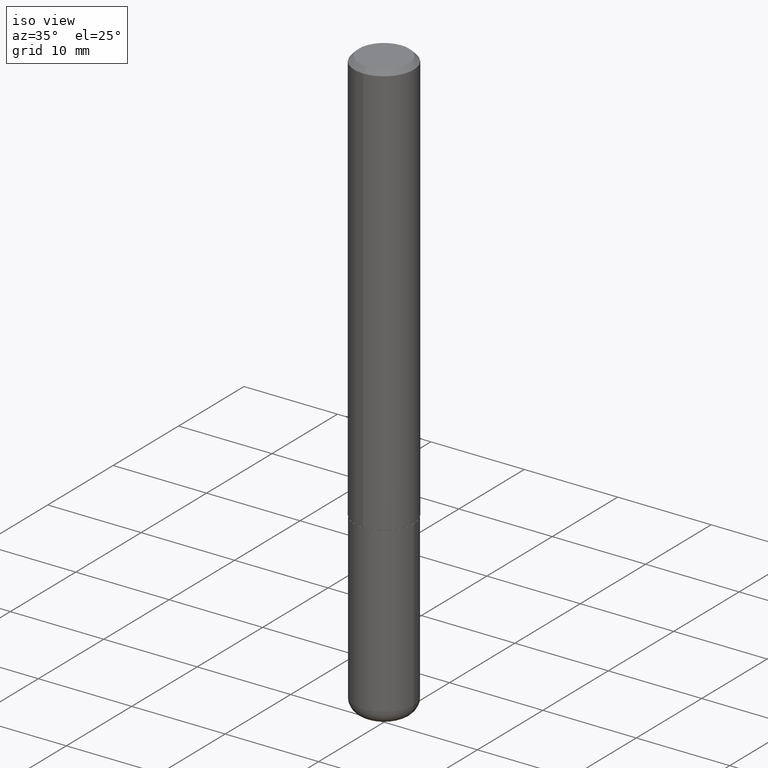
[diagram: clean part render]
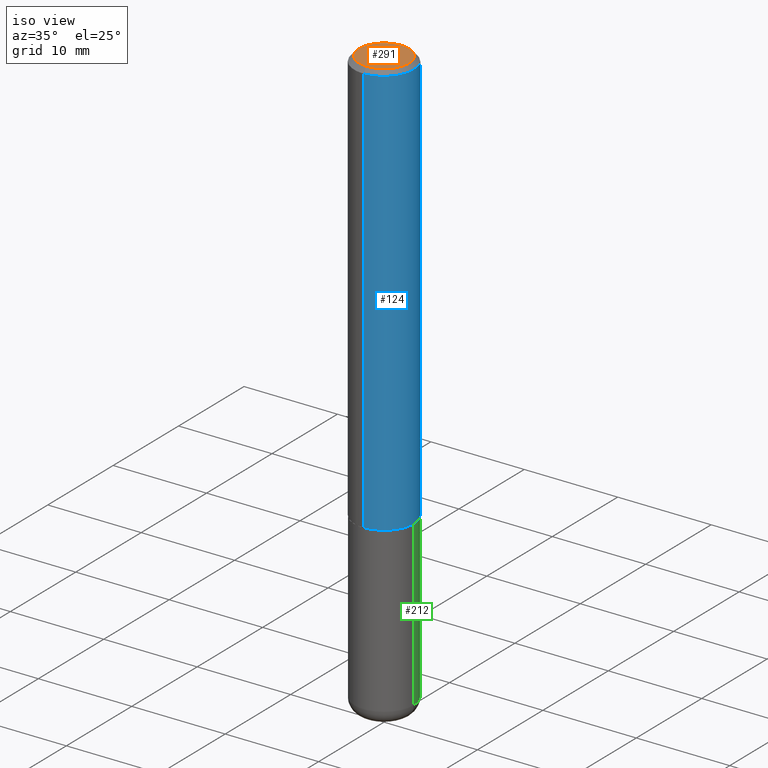
[diagram: same view with three faces highlighted in distinct colors, each labeled with its STEP entity id]
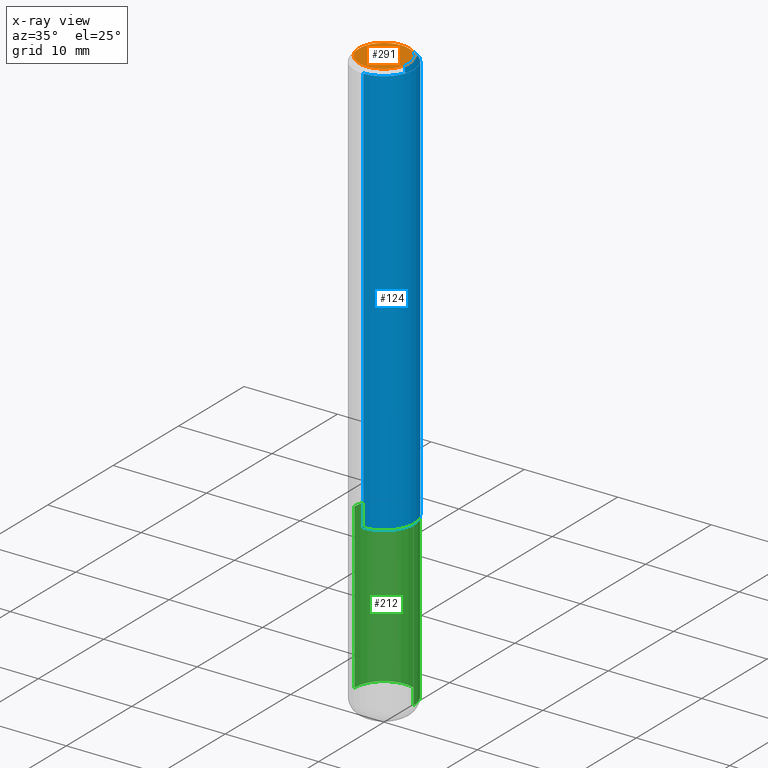
[diagram: x-ray of the same camera — body ghosted, the three highlighted faces saturated]
A machine part, iso view with three faces highlighted in distinct colors.
The next image is the same camera in x-ray (body ghosted, the three faces saturated) — at least one of them is partly hidden behind the body in this view.
Their STEP definitions:

[orange] entity #291 — the highlighted planar face has unit normal (0, -0, -1).
#3 = DIRECTION ( 'NONE',  ( -2.444769625519019670E-29, 3.492482605351917386E-15, 1.000000000000000000 ) ) ;
#6 = EDGE_CURVE ( 'NONE', #348, #399, #46, .T. ) ;
#38 = CARTESIAN_POINT ( 'NONE',  ( 2.501956864421970211E-45, -3.574177598218272952E-31, -1.023391667789888407E-16 ) ) ;
#46 = CIRCLE ( 'NONE', #347, 0.1050000000000001210 ) ;
#75 = CARTESIAN_POINT ( 'NONE',  ( 7.332110811570587146E-16, 0.1050000000000001210, -4.178802569514461450E-16 ) ) ;
#80 = FACE_OUTER_BOUND ( 'NONE', #169, .T. ) ;
#90 = CARTESIAN_POINT ( 'NONE',  ( 2.501956864421970211E-45, -3.574177598218272952E-31, -1.023391667789888407E-16 ) ) ;
#112 = ORIENTED_EDGE ( 'NONE', *, *, #199, .T. ) ;
#134 = DIRECTION ( 'NONE',  ( -6.982962677686265133E-15, -1.000000000000000000, 3.492482605351917386E-15 ) ) ;
#166 = DIRECTION ( 'NONE',  ( 2.444769625519019109E-29, -3.492482605351917386E-15, -1.000000000000000000 ) ) ;
#169 = EDGE_LOOP ( 'NONE', ( #112, #370 ) ) ;
#199 = EDGE_CURVE ( 'NONE', #399, #348, #215, .T. ) ;
#201 = AXIS2_PLACEMENT_3D ( 'NONE', #38, #3, #134 ) ;
#208 = DIRECTION ( 'NONE',  ( -6.982962677686265133E-15, -1.000000000000000000, 3.492482605351917386E-15 ) ) ;
#215 = CIRCLE ( 'NONE', #201, 0.1050000000000001210 ) ;
#223 = DIRECTION ( 'NONE',  ( 6.982962677686265922E-15, 1.000000000000000000, -3.492482605351917386E-15 ) ) ;
#270 = CARTESIAN_POINT ( 'NONE',  ( -7.889572697437263111E-16, -0.1050000000000001210, 2.643715067829629270E-16 ) ) ;
#290 = AXIS2_PLACEMENT_3D ( 'NONE', #75, #166, #223 ) ;
#291 = ADVANCED_FACE ( 'NONE', ( #80 ), #401, .F. ) ;
#347 = AXIS2_PLACEMENT_3D ( 'NONE', #90, #402, #208 ) ;
#348 = VERTEX_POINT ( 'NONE', #270 ) ;
#370 = ORIENTED_EDGE ( 'NONE', *, *, #6, .T. ) ;
#399 = VERTEX_POINT ( 'NONE', #418 ) ;
#401 = PLANE ( 'NONE',  #290 ) ;
#402 = DIRECTION ( 'NONE',  ( -2.444769625519019670E-29, 3.492482605351917386E-15, 1.000000000000000000 ) ) ;
#418 = CARTESIAN_POINT ( 'NONE',  ( 8.030407079339212239E-16, 0.1050000000000001210, -4.690498403409406824E-16 ) ) ;

[blue] entity #124 — the highlighted cylindrical surface (edge-blend (fillet) strip) has radius 3.175 mm, axis along (-0, 0, 1).
#19 = CARTESIAN_POINT ( 'NONE',  ( 0.000000000000000000, 0.000000000000000000, 0.000000000000000000 ) ) ;
#22 = AXIS2_PLACEMENT_3D ( 'NONE', #413, #344, #243 ) ;
#30 = ORIENTED_EDGE ( 'NONE', *, *, #327, .F. ) ;
#50 = DIRECTION ( 'NONE',  ( -6.982962677686266711E-15, -1.000000000000000000, 3.492482605351917386E-15 ) ) ;
#59 = CYLINDRICAL_SURFACE ( 'NONE', #197, 0.1250000000000001110 ) ;
#72 = ORIENTED_EDGE ( 'NONE', *, *, #379, .T. ) ;
#77 = ORIENTED_EDGE ( 'NONE', *, *, #129, .T. ) ;
#101 = VECTOR ( 'NONE', #228, 39.37007874015748143 ) ;
#108 = ORIENTED_EDGE ( 'NONE', *, *, #175, .F. ) ;
#121 = VECTOR ( 'NONE', #318, 39.37007874015748143 ) ;
#124 = ADVANCED_FACE ( 'NONE', ( #339 ), #59, .T. ) ;
#129 = EDGE_CURVE ( 'NONE', #288, #331, #180, .T. ) ;
#131 = CARTESIAN_POINT ( 'NONE',  ( 8.881784197001479121E-16, 0.1249999999999941019, -1.749000000000000332 ) ) ;
#140 = CARTESIAN_POINT ( 'NONE',  ( 8.881784197001260212E-16, 0.1250000000000001110, -4.365603256689900677E-16 ) ) ;
#148 = DIRECTION ( 'NONE',  ( -2.444769625519019670E-29, 3.492482605351917386E-15, 1.000000000000000000 ) ) ;
#161 = CARTESIAN_POINT ( 'NONE',  ( 8.728703347107837333E-16, 0.1249999999999999306, -0.02000000000000046185 ) ) ;
#162 = VERTEX_POINT ( 'NONE', #214 ) ;
#175 = EDGE_CURVE ( 'NONE', #372, #331, #329, .T. ) ;
#177 = DIRECTION ( 'NONE',  ( -6.982962677686265133E-15, -1.000000000000000000, 4.370956789862812472E-15 ) ) ;
#180 = LINE ( 'NONE', #140, #101 ) ;
#182 = CIRCLE ( 'NONE', #368, 0.1250000000000002498 ) ;
#193 = CARTESIAN_POINT ( 'NONE',  ( -8.728703347107841277E-16, -0.1250000000000001110, 4.365603256689900677E-16 ) ) ;
#197 = AXIS2_PLACEMENT_3D ( 'NONE', #19, #263, #50 ) ;
#214 = CARTESIAN_POINT ( 'NONE',  ( -8.728703347107422194E-16, -0.1250000000000063560, -1.748999999999999222 ) ) ;
#228 = DIRECTION ( 'NONE',  ( -2.444769625519019670E-29, 3.492482605351917386E-15, 1.000000000000000000 ) ) ;
#243 = DIRECTION ( 'NONE',  ( -6.982962677686265922E-15, -1.000000000000000000, 3.483106191921935554E-15 ) ) ;
#263 = DIRECTION ( 'NONE',  ( -2.444769625519019670E-29, 3.492482605351917386E-15, 1.000000000000000000 ) ) ;
#288 = VERTEX_POINT ( 'NONE', #131 ) ;
#295 = CARTESIAN_POINT ( 'NONE',  ( -8.575622497214408537E-16, -0.1250000000000000555, -0.01999999999999959102 ) ) ;
#318 = DIRECTION ( 'NONE',  ( -2.444769625519019670E-29, 3.492482605351917386E-15, 1.000000000000000000 ) ) ;
#327 = EDGE_CURVE ( 'NONE', #162, #372, #386, .T. ) ;
#329 = CIRCLE ( 'NONE', #22, 0.1250000000000000000 ) ;
#331 = VERTEX_POINT ( 'NONE', #161 ) ;
#334 = EDGE_LOOP ( 'NONE', ( #72, #77, #108, #30 ) ) ;
#339 = FACE_OUTER_BOUND ( 'NONE', #334, .T. ) ;
#341 = CARTESIAN_POINT ( 'NONE',  ( 4.275902075032765006E-29, -6.108352076760502035E-15, -1.748999999999999888 ) ) ;
#344 = DIRECTION ( 'NONE',  ( -2.444769625519019670E-29, 3.492482605351917386E-15, 1.000000000000000000 ) ) ;
#368 = AXIS2_PLACEMENT_3D ( 'NONE', #341, #148, #177 ) ;
#372 = VERTEX_POINT ( 'NONE', #295 ) ;
#379 = EDGE_CURVE ( 'NONE', #162, #288, #182, .T. ) ;
#386 = LINE ( 'NONE', #193, #121 ) ;
#413 = CARTESIAN_POINT ( 'NONE',  ( 4.889539251038044560E-31, -6.984965210703842315E-17, -0.02000000000000002470 ) ) ;

[green] entity #212 — the highlighted cylindrical surface (edge-blend (fillet) strip) has radius 3.175 mm, axis along (-0, 0, 1).
#1 = EDGE_LOOP ( 'NONE', ( #406, #387, #70, #188 ) ) ;
#7 = FACE_OUTER_BOUND ( 'NONE', #1, .T. ) ;
#24 = DIRECTION ( 'NONE',  ( 1.000000000000000000, -6.982962677686262766E-15, 0.000000000000000000 ) ) ;
#32 = DIRECTION ( 'NONE',  ( -2.445468806185136877E-29, 3.491481338843145188E-15, 1.000000000000000000 ) ) ;
#36 = VERTEX_POINT ( 'NONE', #296 ) ;
#57 = AXIS2_PLACEMENT_3D ( 'NONE', #266, #299, #24 ) ;
#65 = CARTESIAN_POINT ( 'NONE',  ( -0.1250000000000000000, 8.881784197001252323E-16, -6.148668862818632227E-30 ) ) ;
#68 = CARTESIAN_POINT ( 'NONE',  ( 0.1249999999999999861, -9.392084801488058387E-15, -2.440000000000000391 ) ) ;
#70 = ORIENTED_EDGE ( 'NONE', *, *, #93, .F. ) ;
#84 = EDGE_CURVE ( 'NONE', #185, #310, #285, .T. ) ;
#92 = AXIS2_PLACEMENT_3D ( 'NONE', #269, #238, #400 ) ;
#93 = EDGE_CURVE ( 'NONE', #36, #165, #225, .T. ) ;
#99 = DIRECTION ( 'NONE',  ( 1.000000000000000000, -6.982962677686266711E-15, 4.876176775795935793E-29 ) ) ;
#105 = DIRECTION ( 'NONE',  ( -2.445468806185136877E-29, 3.491481338843145188E-15, 1.000000000000000000 ) ) ;
#114 = CYLINDRICAL_SURFACE ( 'NONE', #412, 0.1250000000000000000 ) ;
#125 = CARTESIAN_POINT ( 'NONE',  ( -0.1250000000000000000, -6.426474985176265022E-15, -1.750000000000000222 ) ) ;
#159 = CARTESIAN_POINT ( 'NONE',  ( 0.1250000000000000000, -8.728703347107833388E-16, 6.095220969744919741E-30 ) ) ;
#165 = VERTEX_POINT ( 'NONE', #125 ) ;
#185 = VERTEX_POINT ( 'NONE', #68 ) ;
#188 = ORIENTED_EDGE ( 'NONE', *, *, #226, .F. ) ;
#196 = DIRECTION ( 'NONE',  ( -2.445468806185136597E-29, 3.491481338843145583E-15, 1.000000000000000000 ) ) ;
#212 = ADVANCED_FACE ( 'NONE', ( #7 ), #114, .T. ) ;
#218 = CARTESIAN_POINT ( 'NONE',  ( 0.000000000000000000, 0.000000000000000000, 0.000000000000000000 ) ) ;
#225 = CIRCLE ( 'NONE', #92, 0.1250000000000000000 ) ;
#226 = EDGE_CURVE ( 'NONE', #185, #36, #393, .T. ) ;
#230 = CARTESIAN_POINT ( 'NONE',  ( -0.1249999999999999861, -7.631036047077151393E-15, -2.440000000000000391 ) ) ;
#238 = DIRECTION ( 'NONE',  ( -2.445468806185136597E-29, 3.491481338843145583E-15, 1.000000000000000000 ) ) ;
#266 = CARTESIAN_POINT ( 'NONE',  ( 5.966943887091733341E-29, -8.519214466777275048E-15, -2.440000000000000391 ) ) ;
#269 = CARTESIAN_POINT ( 'NONE',  ( 4.279570410823989044E-29, -6.110092342975505460E-15, -1.750000000000000222 ) ) ;
#272 = VECTOR ( 'NONE', #105, 39.37007874015748143 ) ;
#285 = CIRCLE ( 'NONE', #57, 0.1250000000000000000 ) ;
#296 = CARTESIAN_POINT ( 'NONE',  ( 0.1250000000000000000, -6.982962677686288010E-15, -1.750000000000000222 ) ) ;
#299 = DIRECTION ( 'NONE',  ( -2.445468806185136597E-29, 3.491481338843145583E-15, 1.000000000000000000 ) ) ;
#310 = VERTEX_POINT ( 'NONE', #230 ) ;
#323 = VECTOR ( 'NONE', #32, 39.37007874015748143 ) ;
#387 = ORIENTED_EDGE ( 'NONE', *, *, #404, .T. ) ;
#388 = LINE ( 'NONE', #65, #323 ) ;
#393 = LINE ( 'NONE', #159, #272 ) ;
#400 = DIRECTION ( 'NONE',  ( 1.000000000000000000, -6.982962677686262766E-15, 0.000000000000000000 ) ) ;
#404 = EDGE_CURVE ( 'NONE', #310, #165, #388, .T. ) ;
#406 = ORIENTED_EDGE ( 'NONE', *, *, #84, .T. ) ;
#412 = AXIS2_PLACEMENT_3D ( 'NONE', #218, #196, #99 ) ;